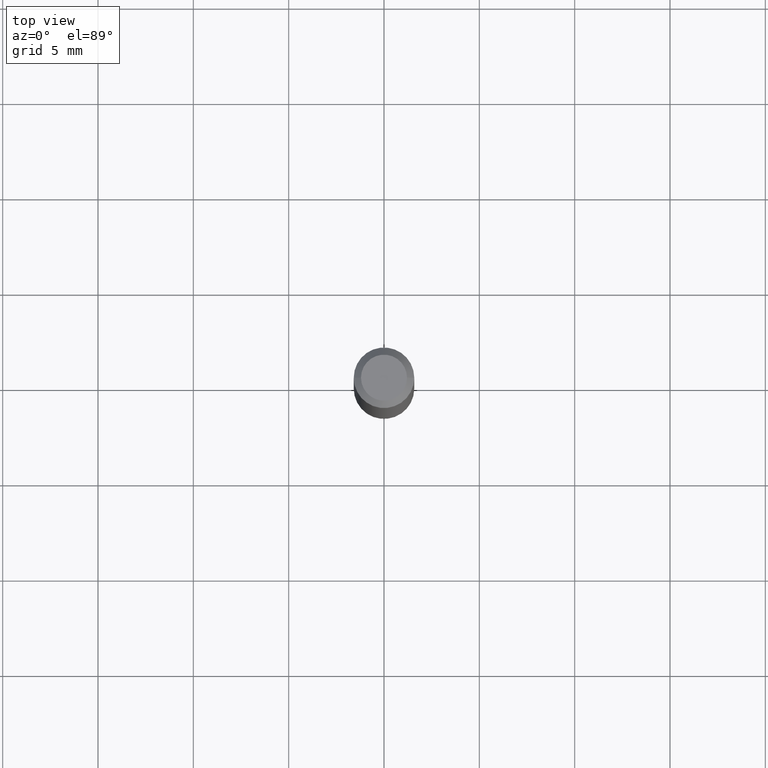
[diagram: clean part render]
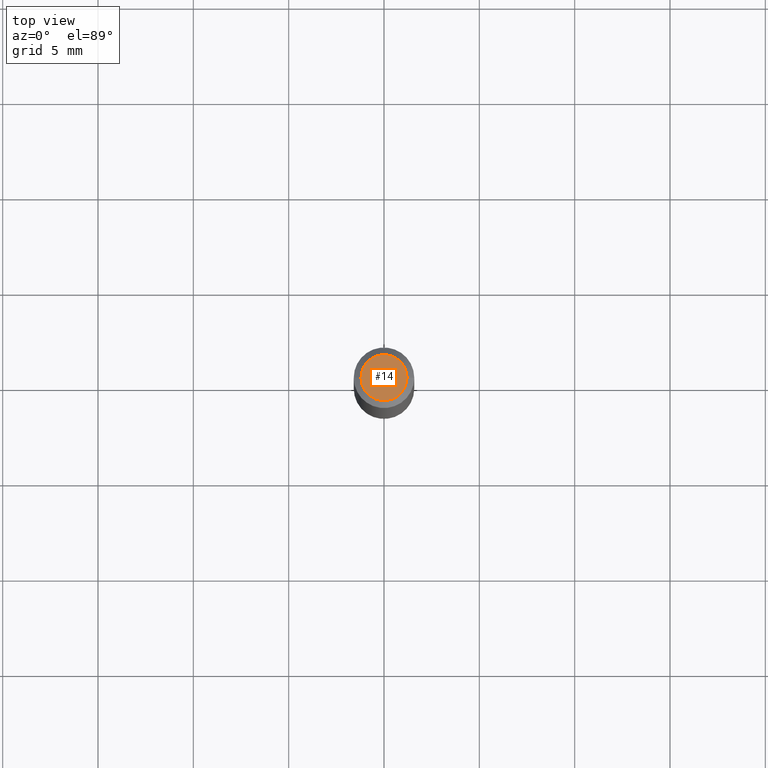
[diagram: same view with one face highlighted and labeled with its STEP entity id]
A machine part, top view. The second image highlights one B-rep face of the part: STEP entity #14.
In plain terms, the highlighted planar face has unit normal (0, -0, -1).
Its self-contained STEP definition (entity closure, byte-faithful):
#14 = ADVANCED_FACE ( 'NONE', ( #233 ), #379, .F. ) ;
#28 = DIRECTION ( 'NONE',  ( -1.000000000000000000, 6.982962677686265922E-15, -4.876176775795935793E-29 ) ) ;
#31 = CIRCLE ( 'NONE', #59, 0.04749999999999999362 ) ;
#38 = CARTESIAN_POINT ( 'NONE',  ( -0.04749999999999999362, 3.578768372314206562E-16, -1.989643822619551895E-16 ) ) ;
#56 = VERTEX_POINT ( 'NONE', #232 ) ;
#59 = AXIS2_PLACEMENT_3D ( 'NONE', #285, #438, #250 ) ;
#60 = CARTESIAN_POINT ( 'NONE',  ( 3.316907271900976096E-16, 0.04749999999999999362, -2.653275547260257586E-16 ) ) ;
#73 = AXIS2_PLACEMENT_3D ( 'NONE', #60, #197, #28 ) ;
#96 = ORIENTED_EDGE ( 'NONE', *, *, #337, .T. ) ;
#109 = EDGE_CURVE ( 'NONE', #306, #56, #31, .T. ) ;
#178 = DIRECTION ( 'NONE',  ( 1.000000000000000000, -6.982962677686267499E-15, 4.852736867747366768E-29 ) ) ;
#196 = AXIS2_PLACEMENT_3D ( 'NONE', #216, #404, #178 ) ;
#197 = DIRECTION ( 'NONE',  ( 2.438088387897960049E-29, -3.491481338843145188E-15, -1.000000000000000000 ) ) ;
#216 = CARTESIAN_POINT ( 'NONE',  ( 4.865611903635008365E-45, -6.946804277620623666E-31, -1.989643822619527736E-16 ) ) ;
#232 = CARTESIAN_POINT ( 'NONE',  ( 0.04749999999999999362, -4.035134999187581581E-16, -1.989643822619502098E-16 ) ) ;
#233 = FACE_OUTER_BOUND ( 'NONE', #387, .T. ) ;
#250 = DIRECTION ( 'NONE',  ( 1.000000000000000000, -6.982962677686267499E-15, 4.852736867747366768E-29 ) ) ;
#285 = CARTESIAN_POINT ( 'NONE',  ( 4.865611903635008365E-45, -6.946804277620623666E-31, -1.989643822619527736E-16 ) ) ;
#306 = VERTEX_POINT ( 'NONE', #38 ) ;
#337 = EDGE_CURVE ( 'NONE', #56, #306, #368, .T. ) ;
#368 = CIRCLE ( 'NONE', #196, 0.04749999999999999362 ) ;
#379 = PLANE ( 'NONE',  #73 ) ;
#387 = EDGE_LOOP ( 'NONE', ( #394, #96 ) ) ;
#394 = ORIENTED_EDGE ( 'NONE', *, *, #109, .T. ) ;
#404 = DIRECTION ( 'NONE',  ( -2.445468806185136597E-29, 3.491481338843145583E-15, 1.000000000000000000 ) ) ;
#438 = DIRECTION ( 'NONE',  ( -2.445468806185136597E-29, 3.491481338843145583E-15, 1.000000000000000000 ) ) ;